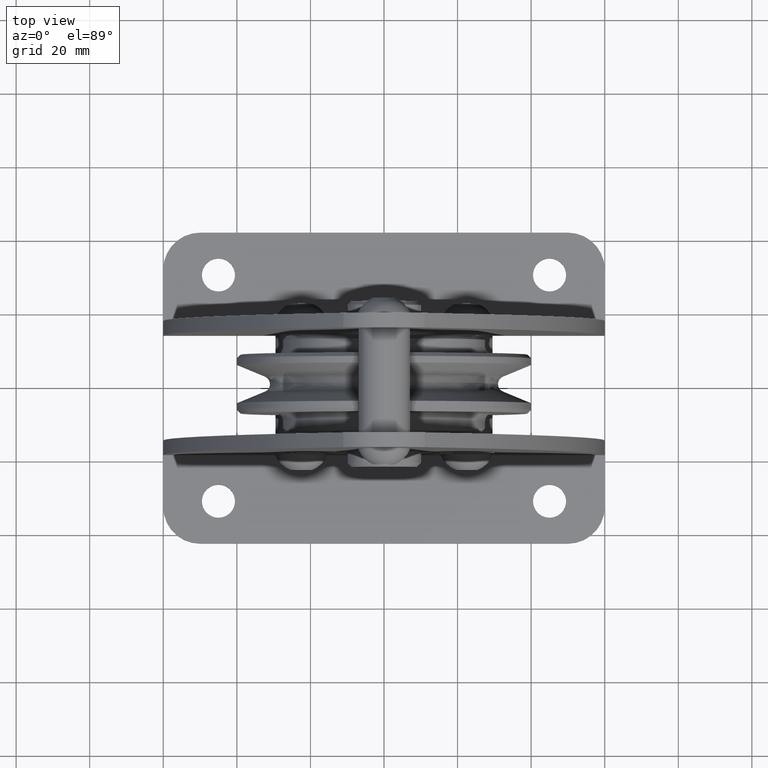
[diagram: clean part render]
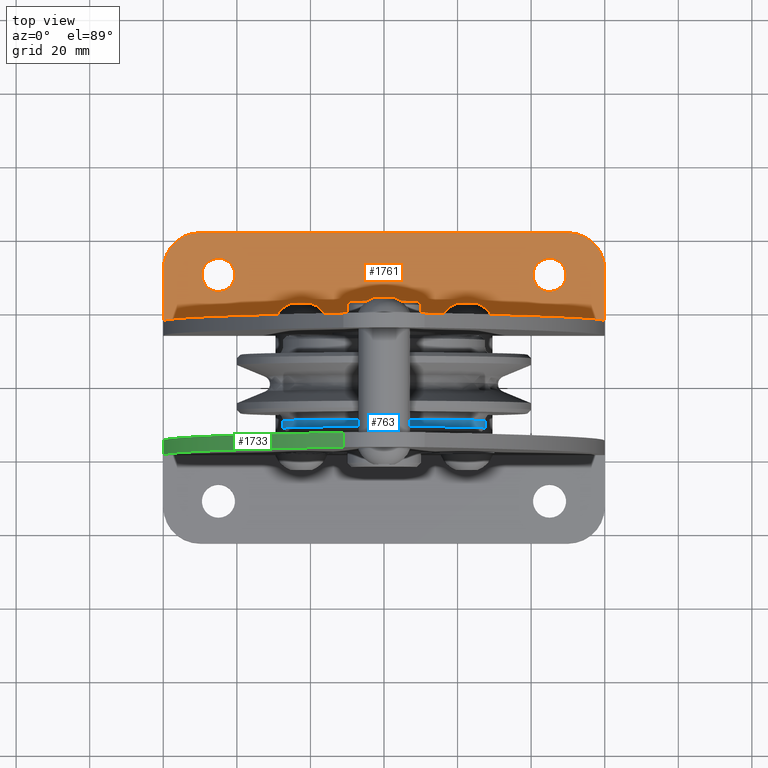
[diagram: same view with three faces highlighted in distinct colors, each labeled with its STEP entity id]
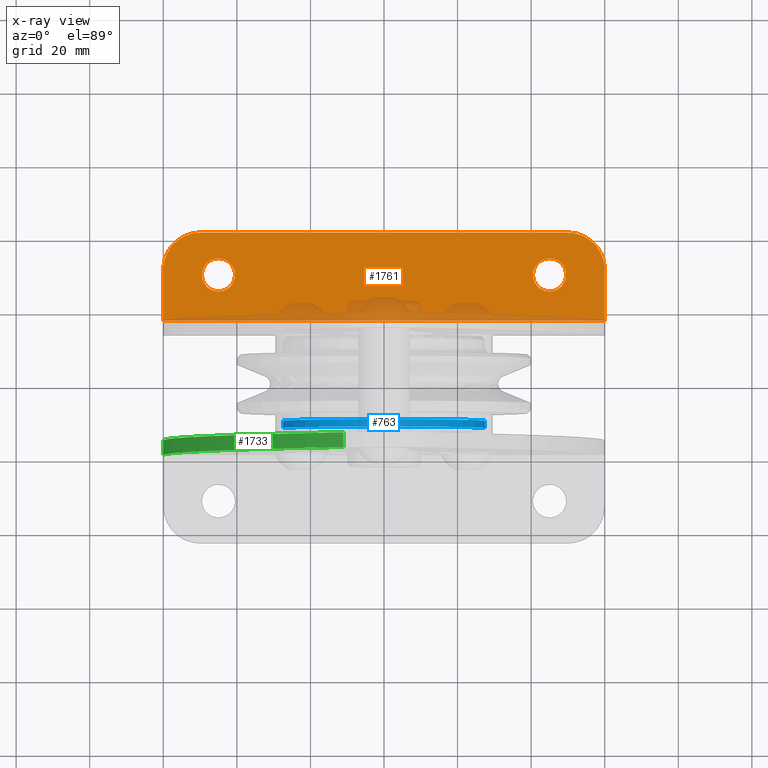
[diagram: x-ray of the same camera — body ghosted, the three highlighted faces saturated]
A machine part, top view with three faces highlighted in distinct colors.
The next image is the same camera in x-ray (body ghosted, the three faces saturated) — at least one of them is partly hidden behind the body in this view.
Their STEP definitions:

[orange] entity #1761 — the highlighted planar face has unit normal (0, 0, 1).
#1761=ADVANCED_FACE('',(#3699,#3700,#3701),#3702,.T.);
#3699=FACE_BOUND('',#5769,.T.);
#3700=FACE_BOUND('',#5770,.T.);
#3701=FACE_OUTER_BOUND('',#5771,.T.);
#3702=PLANE('',#5772);
#5769=EDGE_LOOP('',(#11365,#11366));
#5770=EDGE_LOOP('',(#11367,#11368));
#5771=EDGE_LOOP('',(#11369,#11370,#11371,#11372,#11373,#11374));
#5772=AXIS2_PLACEMENT_3D('',#11375,#11376,#11377);
#11365=ORIENTED_EDGE('',*,*,#12509,.T.);
#11366=ORIENTED_EDGE('',*,*,#14434,.T.);
#11367=ORIENTED_EDGE('',*,*,#12504,.T.);
#11368=ORIENTED_EDGE('',*,*,#14437,.T.);
#11369=ORIENTED_EDGE('',*,*,#14447,.F.);
#11370=ORIENTED_EDGE('',*,*,#14442,.F.);
#11371=ORIENTED_EDGE('',*,*,#14464,.F.);
#11372=ORIENTED_EDGE('',*,*,#14460,.F.);
#11373=ORIENTED_EDGE('',*,*,#14456,.F.);
#11374=ORIENTED_EDGE('',*,*,#14452,.F.);
#11375=CARTESIAN_POINT('',(-3.10862446895044E-015,29.8153649019942,-61.0));
#11376=DIRECTION('',(0.0,0.0,1.0));
#11377=DIRECTION('',(-1.0,0.0,0.0));
#12504=EDGE_CURVE('',#15060,#15064,#15066,.T.);
#12509=EDGE_CURVE('',#15069,#15073,#15075,.T.);
#14434=EDGE_CURVE('',#15073,#15069,#17920,.T.);
#14437=EDGE_CURVE('',#15064,#15060,#17923,.T.);
#14442=EDGE_CURVE('',#17928,#17929,#17930,.T.);
#14447=EDGE_CURVE('',#17929,#17937,#17938,.T.);
#14452=EDGE_CURVE('',#17937,#17945,#17946,.T.);
#14456=EDGE_CURVE('',#17945,#17951,#17952,.T.);
#14460=EDGE_CURVE('',#17951,#17957,#17958,.T.);
#14464=EDGE_CURVE('',#17957,#17928,#17963,.T.);
#15060=VERTEX_POINT('',#19572);
#15064=VERTEX_POINT('',#19577);
#15066=CIRCLE('',#19580,4.5);
#15069=VERTEX_POINT('',#19583);
#15073=VERTEX_POINT('',#19588);
#15075=CIRCLE('',#19591,4.5);
#17920=CIRCLE('',#25833,4.5);
#17923=CIRCLE('',#25836,4.5);
#17928=VERTEX_POINT('',#25841);
#17929=VERTEX_POINT('',#25842);
#17930=LINE('',#25843,#25844);
#17937=VERTEX_POINT('',#25851);
#17938=LINE('',#25852,#25853);
#17945=VERTEX_POINT('',#25863);
#17946=CIRCLE('',#25864,9.99999998930002);
#17951=VERTEX_POINT('',#25870);
#17952=LINE('',#25871,#25872);
#17957=VERTEX_POINT('',#25879);
#17958=CIRCLE('',#25880,9.99999998930002);
#17963=LINE('',#25886,#25887);
#19572=CARTESIAN_POINT('',(45.0,35.25,-61.0));
#19577=CARTESIAN_POINT('',(45.0,26.25,-61.0));
#19580=AXIS2_PLACEMENT_3D('',#26702,#26703,#26704);
#19583=CARTESIAN_POINT('',(-45.0,35.25,-61.0));
#19588=CARTESIAN_POINT('',(-45.0,26.25,-61.0));
#19591=AXIS2_PLACEMENT_3D('',#26710,#26711,#26712);
#25833=AXIS2_PLACEMENT_3D('',#28869,#28870,#28871);
#25836=AXIS2_PLACEMENT_3D('',#28875,#28876,#28877);
#25841=CARTESIAN_POINT('',(60.00000927,18.25,-60.9999999999251));
#25842=CARTESIAN_POINT('',(-60.00000927,18.25,-61.0));
#25843=CARTESIAN_POINT('',(4.12114786740858E-013,18.25,-61.0));
#25844=VECTOR('',#28887,1.0);
#25851=CARTESIAN_POINT('',(-60.00001854,32.2500000000011,-61.0));
#25852=CARTESIAN_POINT('',(-60.00001854,32.25,-61.0));
#25853=VECTOR('',#28897,1.0);
#25863=CARTESIAN_POINT('',(-50.00001854,42.25,-61.0));
#25864=AXIS2_PLACEMENT_3D('',#28901,#28902,#28903);
#25870=CARTESIAN_POINT('',(50.0000185400011,42.25,-61.0));
#25871=CARTESIAN_POINT('',(50.00001854,42.25,-61.0));
#25872=VECTOR('',#28908,1.0);
#25879=CARTESIAN_POINT('',(60.00001854,32.25,-61.0));
#25880=AXIS2_PLACEMENT_3D('',#28911,#28912,#28913);
#25886=CARTESIAN_POINT('',(60.00001854,18.25,-61.0));
#25887=VECTOR('',#28918,1.0);
#26702=CARTESIAN_POINT('',(45.0,30.75,-61.0));
#26703=DIRECTION('',(0.0,0.0,-1.0));
#26704=DIRECTION('',(0.0,1.0,0.0));
#26710=CARTESIAN_POINT('',(-45.0,30.75,-61.0));
#26711=DIRECTION('',(0.0,0.0,-1.0));
#26712=DIRECTION('',(0.0,1.0,0.0));
#28869=CARTESIAN_POINT('',(-45.0,30.75,-61.0));
#28870=DIRECTION('',(0.0,0.0,-1.0));
#28871=DIRECTION('',(0.0,1.0,0.0));
#28875=CARTESIAN_POINT('',(45.0,30.75,-61.0));
#28876=DIRECTION('',(0.0,0.0,-1.0));
#28877=DIRECTION('',(0.0,1.0,0.0));
#28887=DIRECTION('',(-1.0,0.0,0.0));
#28897=DIRECTION('',(0.0,1.0,-0.0));
#28901=CARTESIAN_POINT('',(-50.0000185507,32.2500000107,-61.0));
#28902=DIRECTION('',(0.0,0.0,-1.0));
#28903=DIRECTION('',(1.06988551466083E-009,1.0,0.0));
#28908=DIRECTION('',(1.0,0.0,-0.0));
#28911=CARTESIAN_POINT('',(50.0000185507,32.2500000107,-61.0));
#28912=DIRECTION('',(0.0,0.0,-1.0));
#28913=DIRECTION('',(1.0,-1.06988462648241E-009,0.0));
#28918=DIRECTION('',(0.0,-1.0,0.0));

[blue] entity #763 — the highlighted cylindrical surface (partial cylindrical patch) has radius 27.5 mm, axis along (0, -1, 0).
#763=ADVANCED_FACE('',(#2137),#2138,.T.);
#2137=FACE_OUTER_BOUND('',#4207,.T.);
#2138=CYLINDRICAL_SURFACE('',#4208,27.5);
#4207=EDGE_LOOP('',(#6495,#6496,#6497,#6498));
#4208=AXIS2_PLACEMENT_3D('',#6499,#6500,#6501);
#6495=ORIENTED_EDGE('',*,*,#12576,.F.);
#6496=ORIENTED_EDGE('',*,*,#12577,.T.);
#6497=ORIENTED_EDGE('',*,*,#12578,.F.);
#6498=ORIENTED_EDGE('',*,*,#12572,.F.);
#6499=CARTESIAN_POINT('',(0.0,-11.0,0.0));
#6500=DIRECTION('',(0.0,-1.0,0.0));
#6501=DIRECTION('',(1.0,0.0,0.0));
#12572=EDGE_CURVE('',#15175,#15178,#15179,.T.);
#12576=EDGE_CURVE('',#15184,#15175,#15185,.T.);
#12577=EDGE_CURVE('',#15184,#15186,#15187,.T.);
#12578=EDGE_CURVE('',#15178,#15186,#15188,.T.);
#15175=VERTEX_POINT('',#19713);
#15178=VERTEX_POINT('',#19717);
#15179=CIRCLE('',#19718,27.5);
#15184=VERTEX_POINT('',#19724);
#15185=LINE('',#19725,#19726);
#15186=VERTEX_POINT('',#19727);
#15187=CIRCLE('',#19728,27.5);
#15188=LINE('',#19729,#19730);
#19713=CARTESIAN_POINT('',(27.5,-12.0,0.0));
#19717=CARTESIAN_POINT('',(-27.5,-12.0,3.36777869765522E-015));
#19718=AXIS2_PLACEMENT_3D('',#26811,#26812,#26813);
#19724=CARTESIAN_POINT('',(27.5,-10.0,0.0));
#19725=CARTESIAN_POINT('',(27.5,-11.0,-3.36777869765522E-015));
#19726=VECTOR('',#26818,1.0);
#19727=CARTESIAN_POINT('',(-27.5,-10.0,3.36777869765522E-015));
#19728=AXIS2_PLACEMENT_3D('',#26819,#26820,#26821);
#19729=CARTESIAN_POINT('',(-27.5,-11.0,3.36777869765522E-015));
#19730=VECTOR('',#26822,1.0);
#26811=CARTESIAN_POINT('',(0.0,-12.0,0.0));
#26812=DIRECTION('',(0.0,-1.0,0.0));
#26813=DIRECTION('',(1.0,0.0,0.0));
#26818=DIRECTION('',(0.0,-1.0,0.0));
#26819=CARTESIAN_POINT('',(0.0,-10.0,0.0));
#26820=DIRECTION('',(0.0,-1.0,0.0));
#26821=DIRECTION('',(1.0,0.0,0.0));
#26822=DIRECTION('',(-0.0,1.0,-0.0));

[green] entity #1733 — the highlighted cylindrical surface (partial cylindrical patch) has radius 185 mm, axis along (0, -1, 0).
#1733=ADVANCED_FACE('',(#3647),#3648,.T.);
#3647=FACE_OUTER_BOUND('',#5717,.T.);
#3648=CYLINDRICAL_SURFACE('',#5718,184.9999999343);
#5717=EDGE_LOOP('',(#11223,#11224,#11225,#11226));
#5718=AXIS2_PLACEMENT_3D('',#11227,#11228,#11229);
#11223=ORIENTED_EDGE('',*,*,#13212,.T.);
#11224=ORIENTED_EDGE('',*,*,#14419,.F.);
#11225=ORIENTED_EDGE('',*,*,#14420,.T.);
#11226=ORIENTED_EDGE('',*,*,#14415,.T.);
#11227=CARTESIAN_POINT('',(124.9999999343,-14.25,-60.9999999807998));
#11228=DIRECTION('',(0.0,-1.0,0.0));
#11229=DIRECTION('',(-0.735294117527686,0.0,0.67774815435321));
#13212=EDGE_CURVE('',#16288,#16293,#16295,.T.);
#14415=EDGE_CURVE('',#17895,#16288,#17896,.T.);
#14419=EDGE_CURVE('',#17901,#16293,#17902,.T.);
#14420=EDGE_CURVE('',#17901,#17895,#17903,.T.);
#16288=VERTEX_POINT('',#22763);
#16293=VERTEX_POINT('',#22769);
#16295=CIRCLE('',#22771,184.9999999343);
#17895=VERTEX_POINT('',#25799);
#17896=LINE('',#25800,#25801);
#17901=VERTEX_POINT('',#25808);
#17902=LINE('',#25809,#25810);
#17903=CIRCLE('',#25811,184.9999999343);
#22763=CARTESIAN_POINT('',(-60.00000927,-18.25,-60.9999999999251));
#22769=CARTESIAN_POINT('',(-11.029411759994,-18.25,64.383408530004));
#22771=AXIS2_PLACEMENT_3D('',#27727,#27728,#27729);
#25799=CARTESIAN_POINT('',(-59.9999999999999,-14.25,-60.9999999998503));
#25800=CARTESIAN_POINT('',(-59.9999999999999,-14.25,-60.9999999998503));
#25801=VECTOR('',#28851,1.0);
#25808=CARTESIAN_POINT('',(-11.029411759994,-14.25,64.383408530004));
#25809=CARTESIAN_POINT('',(-11.029411759994,-14.25,64.383408530004));
#25810=VECTOR('',#28854,1.0);
#25811=AXIS2_PLACEMENT_3D('',#28855,#28856,#28857);
#27727=CARTESIAN_POINT('',(124.9999999343,-18.25,-60.9999999807998));
#27728=DIRECTION('',(0.0,1.0,-0.0));
#27729=DIRECTION('',(-0.735294117527686,0.0,0.67774815435321));
#28851=DIRECTION('',(0.0,-1.0,0.0));
#28854=DIRECTION('',(0.0,-1.0,0.0));
#28855=CARTESIAN_POINT('',(124.9999999343,-14.25,-60.9999999807998));
#28856=DIRECTION('',(0.0,-1.0,0.0));
#28857=DIRECTION('',(-0.735294117527686,0.0,0.67774815435321));